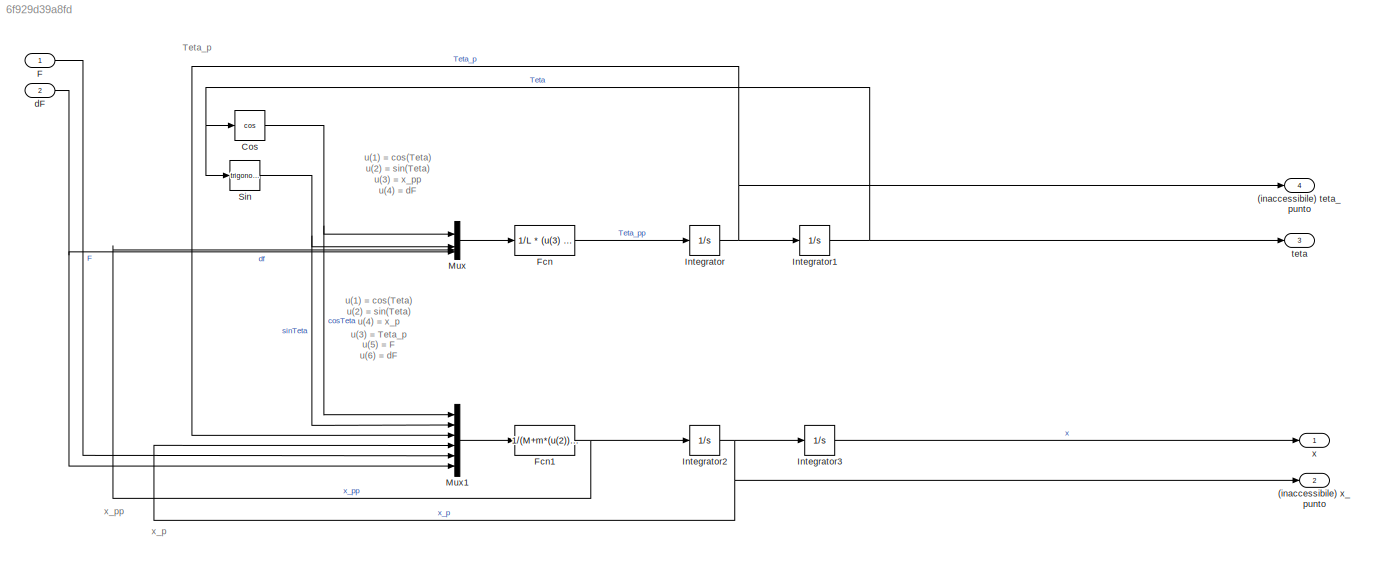
MODEL slx_6f929d39a8fd
KIND model
CONFIG AbsTol = auto
CONFIG EnableMultiTasking = off
CONFIG FixedStep = auto
CONFIG MaxStep = auto
CONFIG MinStep = auto
CONFIG RelTol = 1e-3
CONFIG SampleTimeConstraint = Unconstrained
CONFIG SolverName = ode15s
CONFIG StartTime = 0.0
CONFIG StopTime = 15
BLOCK [Outport] (inaccessibile) teta_punto
  Port = 4
BLOCK [Outport] (inaccessibile) x_punto
  Port = 2
BLOCK [Trigonometry] Cos
  Operator = cos
BLOCK [Inport] F
BLOCK [Fcn] Fcn
  Expr = 1/L *  (u(3) * u(1) + g * u(2) +  u(4) / m * u(1) )
BLOCK [Fcn] Fcn1
  Expr = 1/(M+m*(u(2))^2 ) * ( -Kd * u(4) + u(5) - u(6) - m * L * (u(3))^2 * u(2) + m * g * u(2) * u(1) + u(6) * (u(1))^2 )
BLOCK [Integrator] Integrator
BLOCK [Integrator] Integrator1
  InitialCondition = teta_zero
BLOCK [Integrator] Integrator2
BLOCK [Integrator] Integrator3
BLOCK [Mux] Mux
  DisplayOption = bar
BLOCK [Mux] Mux1
  DisplayOption = bar
  Inputs = 6
BLOCK [Trigonometry] Sin
BLOCK [Inport] dF
  Port = 2
BLOCK [Outport] teta
  Port = 3
BLOCK [Outport] x
ANNOTATION (root): Teta_p
ANNOTATION (root): u(1) = cos(Teta) u(2) = sin(Teta) u(3) = Teta_p u(4) = x_p u(5) = F u(6) = dF
ANNOTATION (root): u(1) = cos(Teta) u(2) = sin(Teta) u(3) = x_pp u(4) = dF
ANNOTATION (root): x_p
ANNOTATION (root): x_pp
NET Cos:1 -> Mux1:1, Mux:1
LINE F:1 -> Mux1:5
NET Fcn1:1 -> Integrator2:1, Mux:3
LINE Fcn:1 -> Integrator:1
NET Integrator1:1 -> Cos:1, Sin:1, teta:1
NET Integrator2:1 -> (inaccessibile) x_punto:1, Integrator3:1, Mux1:4
LINE Integrator3:1 -> x:1
NET Integrator:1 -> (inaccessibile) teta_punto:1, Integrator1:1, Mux1:3
LINE Mux1:1 -> Fcn1:1
LINE Mux:1 -> Fcn:1
NET Sin:1 -> Mux1:2, Mux:2
NET dF:1 -> Mux1:6, Mux:4
note: NET lines group one-source signal fan-out (src -> all destinations, sorted); 1:1 wires keep LINE
